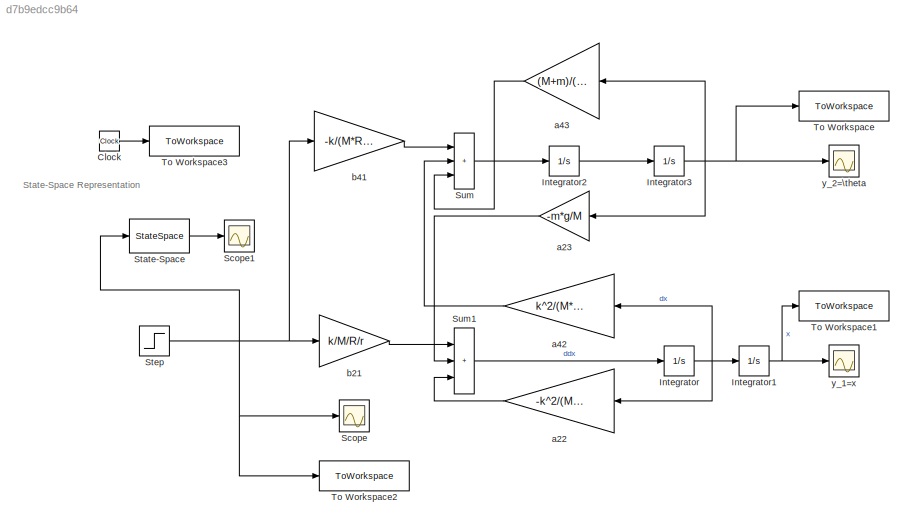
MODEL slx_d7b9edcc9b64
KIND model
CONFIG AbsTol = auto
CONFIG EnableMultiTasking = off
CONFIG FixedStep = auto
CONFIG InitFcn = m=0.1\nM=2\nl=0.1\ng=9.8\nk=1\nR=100\nr=0.02\n
CONFIG MaxStep = 0.001
CONFIG MinStep = auto
CONFIG RelTol = 1e-3
CONFIG SampleTimeConstraint = Unconstrained
CONFIG SolverName = VariableStepAuto
CONFIG StartTime = 0.0
CONFIG StopTime = 2
BLOCK [Clock] Clock
BLOCK [Integrator] Integrator
  Ports = [1, 1]
BLOCK [Integrator] Integrator1
  Ports = [1, 1]
BLOCK [Integrator] Integrator2
  Ports = [1, 1]
BLOCK [Integrator] Integrator3
  Ports = [1, 1]
BLOCK [Scope] Scope
  Floating = off
  NumInputPorts = 1
  Ports = [1]
  ScopeSpecificationString = Simulink.scopes.TimeScopeBlockCfg('CurrentConfiguration', extmgr.ConfigurationSet(extmgr.Configuration('Core','General UI',true),extmgr.Configuration('Core','Source UI',true),extmgr.Configuration('Sources','WiredSimulink',true,'DataLoggingVariableName','ScopeData2'),extmgr.Configuration('Visuals','Time Domain',true,'SerializedDisplays',{struct('MinYLimReal','-0.125','MaxYLimReal','1.125','YLabelRe...<+1351ch>
BLOCK [Scope] Scope1
  Floating = off
  NumInputPorts = 1
  Ports = [1]
  ScopeSpecificationString = Simulink.scopes.TimeScopeBlockCfg('CurrentConfiguration', extmgr.ConfigurationSet(extmgr.Configuration('Core','General UI',true),extmgr.Configuration('Core','Source UI',true),extmgr.Configuration('Sources','WiredSimulink',true,'DataLoggingVariableName','ScopeData1'),extmgr.Configuration('Visuals','Time Domain',true,'SerializedDisplays',{struct('MinYLimReal','-185.22951','MaxYLimReal','21.11173','Y...<+1400ch>
BLOCK [StateSpace] State-Space
  A = [0,1,0,0;0,-k^2/(M*R*r^2),-m*g/M,0;0,0,0,1;0,k^2/(M*l*R*r^2),(M+m)/(M*l)*g,0]
  B = [0;k/M/R/r;0;-k/M/l/R/r]
  C = [1,0,0,0;0,0,1,0]
  D = [0;0]
  InitialCondition = 0
  Ports = [1, 1]
BLOCK [Step] Step
  SampleTime = 0
BLOCK [Sum] Sum
  IconShape = rectangular
  Inputs = +++
  Ports = [3, 1]
BLOCK [Sum] Sum1
  IconShape = rectangular
  Inputs = +++
  Ports = [3, 1]
BLOCK [ToWorkspace] To Workspace
  FixptAsFi = on
  MaxDataPoints = inf
  Ports = [1]
  SampleTime = -1
  VariableName = theta
BLOCK [ToWorkspace] To Workspace1
  FixptAsFi = on
  MaxDataPoints = inf
  Ports = [1]
  SampleTime = -1
  VariableName = x
BLOCK [ToWorkspace] To Workspace2
  FixptAsFi = on
  MaxDataPoints = inf
  Ports = [1]
  SampleTime = -1
  VariableName = Step
BLOCK [ToWorkspace] To Workspace3
  FixptAsFi = on
  MaxDataPoints = inf
  Ports = [1]
  SampleTime = -1
  VariableName = time
BLOCK [Gain] a22
  Gain = -k^2/(M*R*r^2)
BLOCK [Gain] a23
  Gain = -m*g/M
BLOCK [Gain] a42
  Gain = k^2/(M*l*R*r^2)
BLOCK [Gain] a43
  Gain = (M+m)/(M*l)*g
BLOCK [Gain] b21
  Gain = k/M/R/r
BLOCK [Gain] b41
  Gain = -k/(M*R*r*l)
BLOCK [Scope] y_1=x
  Floating = off
  NumInputPorts = 1
  Ports = [1]
  ScopeSpecificationString = Simulink.scopes.TimeScopeBlockCfg('CurrentConfiguration', extmgr.ConfigurationSet(extmgr.Configuration('Core','General UI',true),extmgr.Configuration('Core','Source UI',true),extmgr.Configuration('Sources','WiredSimulink',true,'DataLoggingVariableName','ScopeData1'),extmgr.Configuration('Visuals','Time Domain',true,'SerializedDisplays',{struct('MinYLimReal','-0.0597','MaxYLimReal','0.53731','YLabe...<+1368ch>
BLOCK [Scope] y_2=\theta
  Floating = off
  NumInputPorts = 1
  Ports = [1]
  ScopeSpecificationString = Simulink.scopes.TimeScopeBlockCfg('CurrentConfiguration', extmgr.ConfigurationSet(extmgr.Configuration('Core','General UI',true),extmgr.Configuration('Core','Source UI',true),extmgr.Configuration('Sources','WiredSimulink',true),extmgr.Configuration('Visuals','Time Domain',true,'SerializedDisplays',{struct('MinYLimReal','-185.16981','MaxYLimReal','20.57442','YLabelReal','','MinYLimMag',' 0.00000','...<+1343ch>
ANNOTATION (root): State-Space Representation
LINE Clock:1 -> To Workspace3:1
NET Integrator1:1 -> To Workspace1:1, y_1=x:1
LINE Integrator2:1 -> Integrator3:1
NET Integrator3:1 -> To Workspace:1, a23:1, a43:1, y_2=\theta:1
NET Integrator:1 -> Integrator1:1, a22:1, a42:1
LINE State-Space:1 -> Scope1:1
NET Step:1 -> Scope:1, State-Space:1, To Workspace2:1, b21:1, b41:1
LINE Sum1:1 -> Integrator:1
LINE Sum:1 -> Integrator2:1
LINE a22:1 -> Sum1:3
LINE a23:1 -> Sum1:2
LINE a42:1 -> Sum:2
LINE a43:1 -> Sum:3
LINE b21:1 -> Sum1:1
LINE b41:1 -> Sum:1
note: NET lines group one-source signal fan-out (src -> all destinations, sorted); 1:1 wires keep LINE
